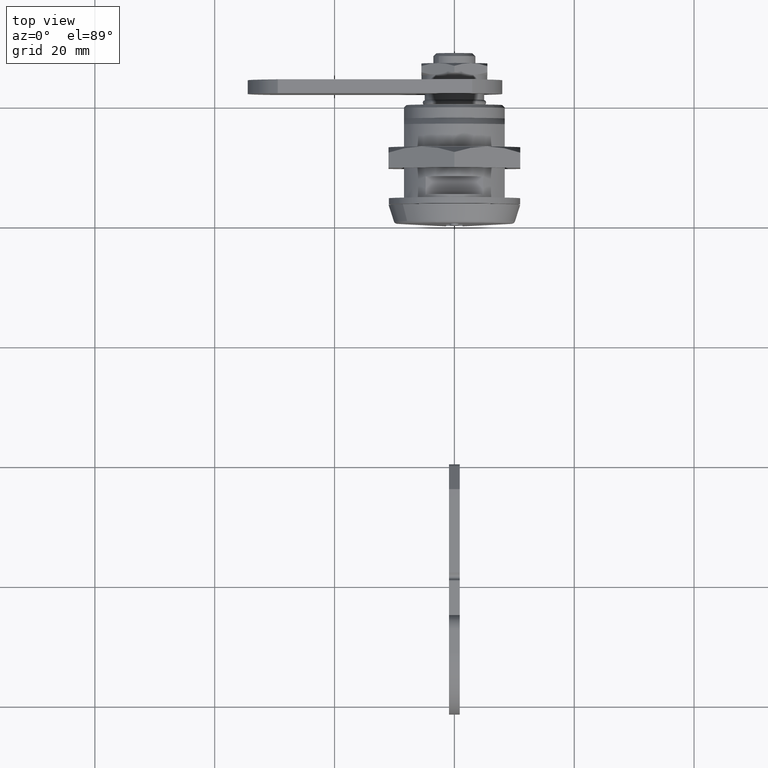
[diagram: clean part render]
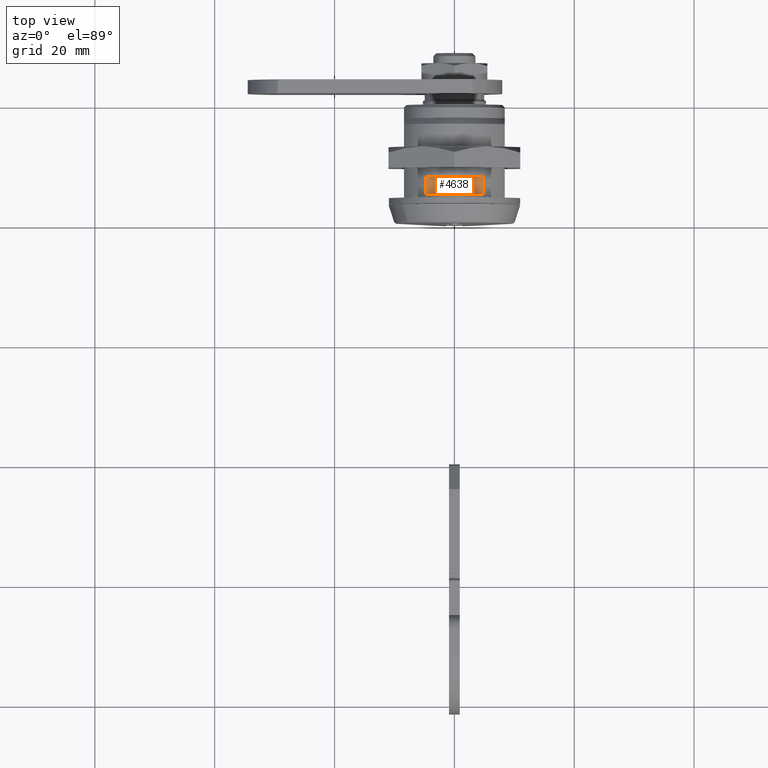
[diagram: same view with one face highlighted and labeled with its STEP entity id]
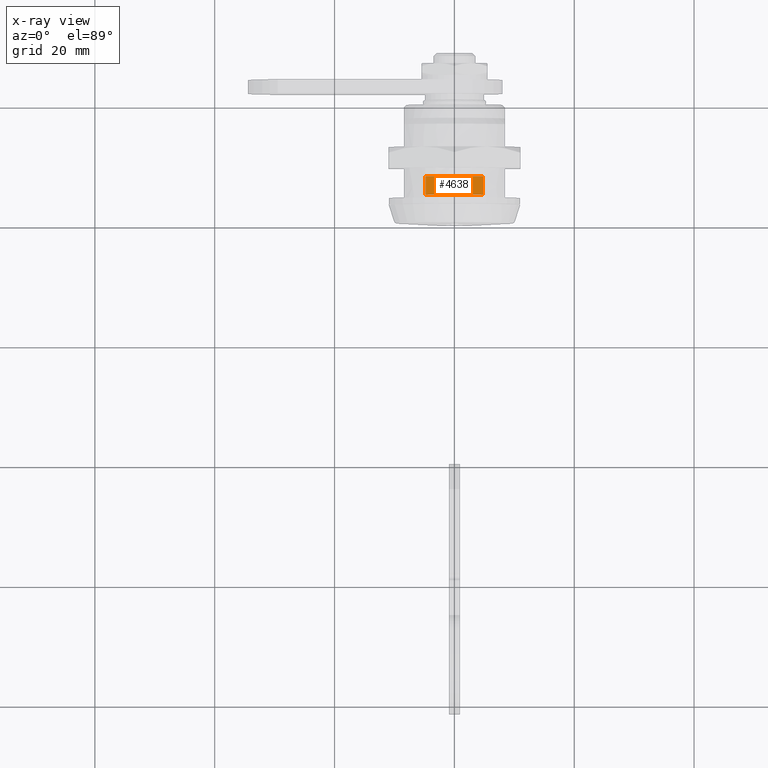
[diagram: x-ray of the same camera — body ghosted, the highlighted face saturated]
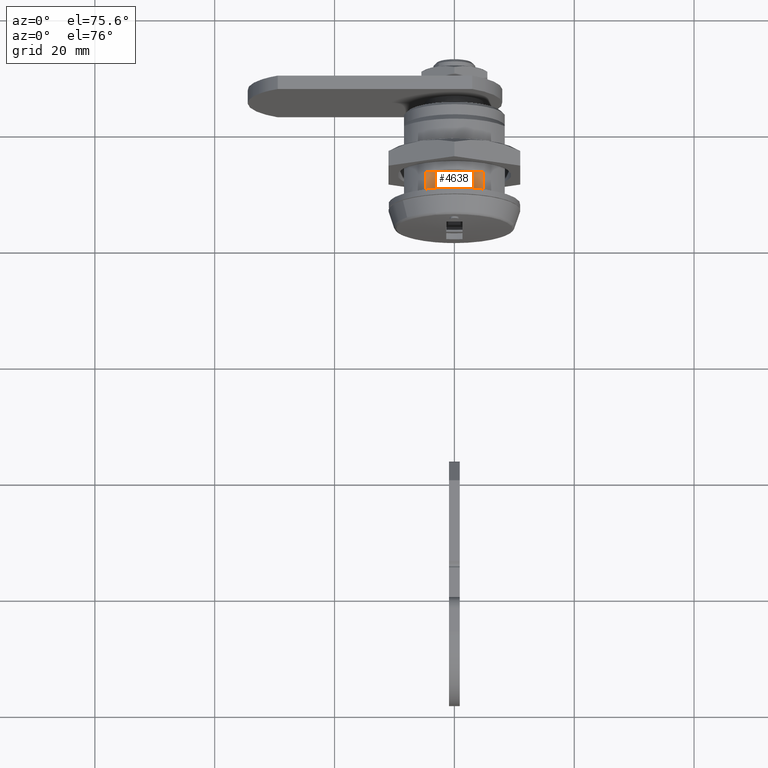
[diagram: same view with one face highlighted and labeled with its STEP entity id]
A machine part, top view. The second image highlights one B-rep face of the part: STEP entity #4638.
The next image is the same camera in x-ray: the body ghosted, the highlighted face saturated — about 0% of this face is hidden behind the body in this view.
A second angle (auxiliary view) of the same face is appended — the face is thin or edge-on in the first view.
In plain terms, the highlighted face is a freeform B-spline surface patch.
Its self-contained STEP definition (entity closure, byte-faithful):
#4564=CARTESIAN_POINT('',(5.201256000000000,4.796873982084939,8.199999999999790));
#4565=VERTEX_POINT('',#4564);
#4566=CARTESIAN_POINT('',(5.201256000000000,-4.796873982084939,8.199999999999790));
#4567=VERTEX_POINT('',#4566);
#4581=CARTESIAN_POINT('',(5.201256000000000,4.796873982084939,8.199999999999790));
#4582=CARTESIAN_POINT('',(5.201256000000000,-4.796873982084939,8.199999999999790));
#4583=QUASI_UNIFORM_CURVE('',1,(#4581,#4582),.UNSPECIFIED.,.F.,.U.);
#4584=EDGE_CURVE('',#4565,#4567,#4583,.T.);
#4594=CARTESIAN_POINT('',(8.201256000000001,4.796873982084939,8.199999999999790));
#4595=VERTEX_POINT('',#4594);
#4596=CARTESIAN_POINT('',(8.201256000000001,-4.796873982084939,8.199999999999790));
#4597=VERTEX_POINT('',#4596);
#4598=CARTESIAN_POINT('',(8.201256000000001,4.796873982084939,8.199999999999790));
#4599=CARTESIAN_POINT('',(8.201256000000001,-4.796873982084939,8.199999999999790));
#4600=QUASI_UNIFORM_CURVE('',1,(#4598,#4599),.UNSPECIFIED.,.F.,.U.);
#4601=EDGE_CURVE('',#4595,#4597,#4600,.T.);
#4619=CARTESIAN_POINT('',(8.351105807770553,-5.276081764359922,8.199999999999790));
#4620=CARTESIAN_POINT('',(5.051405709431826,-5.276081764359922,8.199999999999790));
#4621=CARTESIAN_POINT('',(8.351105807770553,5.276081935909502,8.199999999999790));
#4622=CARTESIAN_POINT('',(5.051405709431826,5.276081935909502,8.199999999999790));
#4623=B_SPLINE_SURFACE_WITH_KNOTS('',1,1,((#4619,#4621),(#4620,#4622)),.UNSPECIFIED.,.F.,.F.,.U.,(2,2),(2,2),(0.0,3.299700098338727),(0.0,10.552163700269430),.UNSPECIFIED.);
#4624=CARTESIAN_POINT('',(5.201256000000000,-4.796873982084939,8.199999999999790));
#4625=CARTESIAN_POINT('',(8.201256000000001,-4.796873982084939,8.199999999999790));
#4626=QUASI_UNIFORM_CURVE('',1,(#4624,#4625),.UNSPECIFIED.,.F.,.U.);
#4627=EDGE_CURVE('',#4567,#4597,#4626,.T.);
#4628=ORIENTED_EDGE('',*,*,#4627,.T.);
#4629=ORIENTED_EDGE('',*,*,#4601,.F.);
#4630=CARTESIAN_POINT('',(8.201256000000001,4.796873982084939,8.199999999999790));
#4631=CARTESIAN_POINT('',(5.201256000000000,4.796873982084939,8.199999999999790));
#4632=QUASI_UNIFORM_CURVE('',1,(#4630,#4631),.UNSPECIFIED.,.F.,.U.);
#4633=EDGE_CURVE('',#4595,#4565,#4632,.T.);
#4634=ORIENTED_EDGE('',*,*,#4633,.T.);
#4635=ORIENTED_EDGE('',*,*,#4584,.T.);
#4636=EDGE_LOOP('',(#4628,#4629,#4634,#4635));
#4637=FACE_OUTER_BOUND('',#4636,.T.);
#4638=ADVANCED_FACE('',(#4637),#4623,.F.);